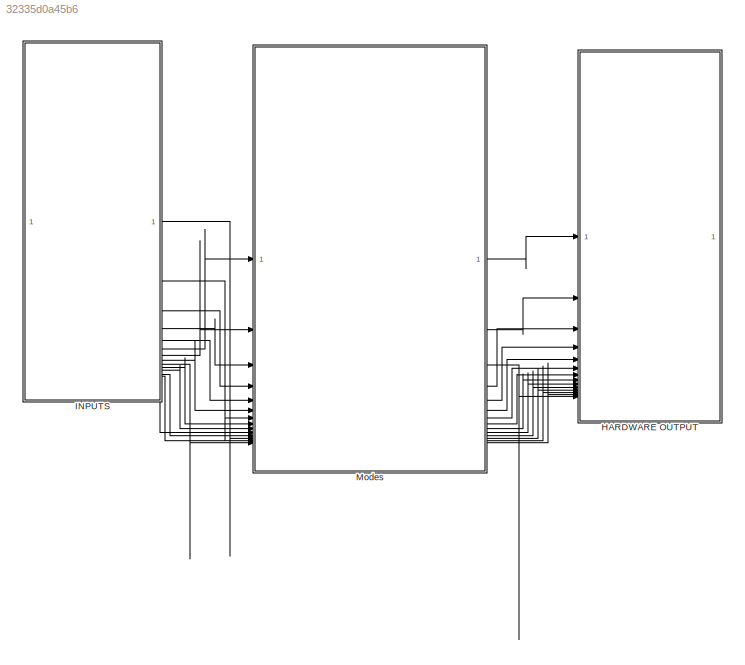
MODEL slx_32335d0a45b6
KIND model
CONFIG AbsTol = auto
CONFIG EnableMultiTasking = on
CONFIG FixedStep = 1e-3
CONFIG MaxStep = auto
CONFIG MinStep = auto
CONFIG RelTol = 1e-3
CONFIG SampleTimeConstraint = Unconstrained
CONFIG SolverName = FixedStepAuto
CONFIG StartTime = 0.0
CONFIG StopTime = 10.0
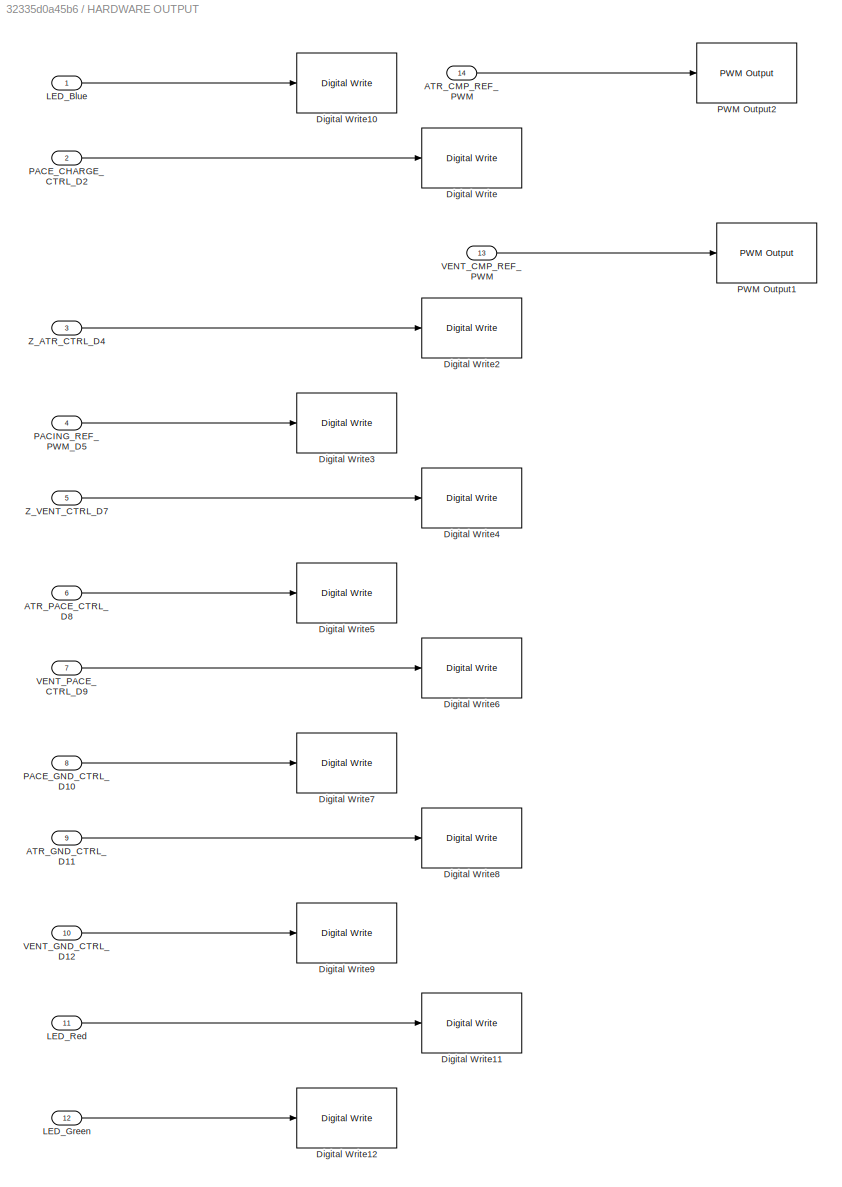
BLOCK [SubSystem] HARDWARE OUTPUT
BLOCK [Inport] HARDWARE OUTPUT/ATR_CMP_REF_PWM
  Port = 14
BLOCK [Inport] HARDWARE OUTPUT/ATR_GND_CTRL_D11
  Port = 9
BLOCK [Inport] HARDWARE OUTPUT/ATR_PACE_CTRL_D8
  Port = 6
BLOCK [Reference] HARDWARE OUTPUT/Digital Write  REF=frdmk64flib/Digital Write
  SourceBlock = frdmk64flib/Digital Write
  SourceType = freedomk64f.DigitalWrite
BLOCK [Reference] HARDWARE OUTPUT/Digital Write10  REF=frdmk64flib/Digital Write
  SourceBlock = frdmk64flib/Digital Write
  SourceType = freedomk64f.DigitalWrite
BLOCK [Reference] HARDWARE OUTPUT/Digital Write11  REF=frdmk64flib/Digital Write
  SourceBlock = frdmk64flib/Digital Write
  SourceType = freedomk64f.DigitalWrite
BLOCK [Reference] HARDWARE OUTPUT/Digital Write12  REF=frdmk64flib/Digital Write
  SourceBlock = frdmk64flib/Digital Write
  SourceType = freedomk64f.DigitalWrite
BLOCK [Reference] HARDWARE OUTPUT/Digital Write2  REF=frdmk64flib/Digital Write
  SourceBlock = frdmk64flib/Digital Write
  SourceType = freedomk64f.DigitalWrite
BLOCK [Reference] HARDWARE OUTPUT/Digital Write3  REF=frdmk64flib/Digital Write
  SourceBlock = frdmk64flib/Digital Write
  SourceType = freedomk64f.DigitalWrite
BLOCK [Reference] HARDWARE OUTPUT/Digital Write4  REF=frdmk64flib/Digital Write
  SourceBlock = frdmk64flib/Digital Write
  SourceType = freedomk64f.DigitalWrite
BLOCK [Reference] HARDWARE OUTPUT/Digital Write5  REF=frdmk64flib/Digital Write
  SourceBlock = frdmk64flib/Digital Write
  SourceType = freedomk64f.DigitalWrite
BLOCK [Reference] HARDWARE OUTPUT/Digital Write6  REF=frdmk64flib/Digital Write
  SourceBlock = frdmk64flib/Digital Write
  SourceType = freedomk64f.DigitalWrite
BLOCK [Reference] HARDWARE OUTPUT/Digital Write7  REF=frdmk64flib/Digital Write
  SourceBlock = frdmk64flib/Digital Write
  SourceType = freedomk64f.DigitalWrite
BLOCK [Reference] HARDWARE OUTPUT/Digital Write8  REF=frdmk64flib/Digital Write
  SourceBlock = frdmk64flib/Digital Write
  SourceType = freedomk64f.DigitalWrite
BLOCK [Reference] HARDWARE OUTPUT/Digital Write9  REF=frdmk64flib/Digital Write
  SourceBlock = frdmk64flib/Digital Write
  SourceType = freedomk64f.DigitalWrite
BLOCK [Inport] HARDWARE OUTPUT/LED_Blue
BLOCK [Inport] HARDWARE OUTPUT/LED_Green
  Port = 12
BLOCK [Inport] HARDWARE OUTPUT/LED_Red
  Port = 11
BLOCK [Inport] HARDWARE OUTPUT/PACE_CHARGE_CTRL_D2
  Port = 2
BLOCK [Inport] HARDWARE OUTPUT/PACE_GND_CTRL_D10
  Port = 8
BLOCK [Inport] HARDWARE OUTPUT/PACING_REF_PWM_D5
  Port = 4
BLOCK [Reference] HARDWARE OUTPUT/PWM Output1  REF=frdmk64flib/PWM Output
  SourceBlock = frdmk64flib/PWM Output
  SourceType = freedomk64f.PWMOutput
BLOCK [Reference] HARDWARE OUTPUT/PWM Output2  REF=frdmk64flib/PWM Output
  SourceBlock = frdmk64flib/PWM Output
  SourceType = freedomk64f.PWMOutput
BLOCK [Inport] HARDWARE OUTPUT/VENT_CMP_REF_PWM
  Port = 13
BLOCK [Inport] HARDWARE OUTPUT/VENT_GND_CTRL_D12
  Port = 10
BLOCK [Inport] HARDWARE OUTPUT/VENT_PACE_CTRL_D9
  Port = 7
BLOCK [Inport] HARDWARE OUTPUT/Z_ATR_CTRL_D4
  Port = 3
BLOCK [Inport] HARDWARE OUTPUT/Z_VENT_CTRL_D7
  Port = 5
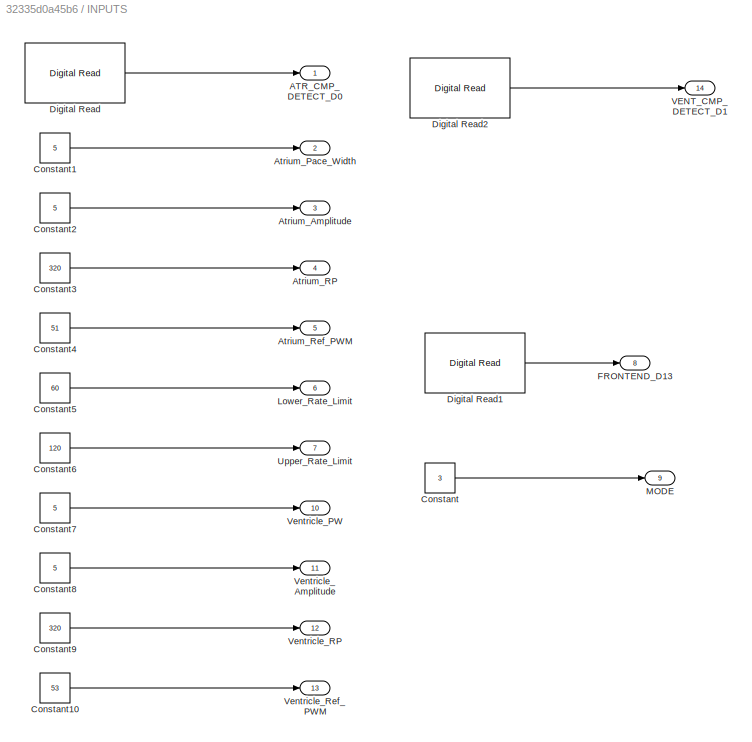
BLOCK [SubSystem] INPUTS
BLOCK [Outport] INPUTS/ MODE
  Port = 9
BLOCK [Outport] INPUTS/ATR_CMP_DETECT_D0
BLOCK [Outport] INPUTS/Atrium_Amplitude
  OutDataTypeStr = int16
  Port = 3
BLOCK [Outport] INPUTS/Atrium_Pace_Width
  OutDataTypeStr = int16
  Port = 2
BLOCK [Outport] INPUTS/Atrium_RP
  OutDataTypeStr = int16
  Port = 4
BLOCK [Outport] INPUTS/Atrium_Ref_PWM
  OutDataTypeStr = int16
  Port = 5
BLOCK [Constant] INPUTS/Constant
  Value = 3
BLOCK [Constant] INPUTS/Constant1
  OutDataTypeStr = int16
  Value = 5
BLOCK [Constant] INPUTS/Constant10
  OutDataTypeStr = int16
  Value = 53
BLOCK [Constant] INPUTS/Constant2
  OutDataTypeStr = int16
  Value = 5
BLOCK [Constant] INPUTS/Constant3
  OutDataTypeStr = int16
  Value = 320
BLOCK [Constant] INPUTS/Constant4
  OutDataTypeStr = int16
  Value = 51
BLOCK [Constant] INPUTS/Constant5
  OutDataTypeStr = int16
  Value = 60
BLOCK [Constant] INPUTS/Constant6
  OutDataTypeStr = int16
  Value = 120
BLOCK [Constant] INPUTS/Constant7
  OutDataTypeStr = int16
  Value = 5
BLOCK [Constant] INPUTS/Constant8
  OutDataTypeStr = int16
  Value = 5
BLOCK [Constant] INPUTS/Constant9
  OutDataTypeStr = int16
  Value = 320
BLOCK [Reference] INPUTS/Digital Read  REF=frdmk64flib/Digital Read
  SourceBlock = frdmk64flib/Digital Read
  SourceType = freedomk64f.DigitalRead
BLOCK [Reference] INPUTS/Digital Read1  REF=frdmk64flib/Digital Read
  SourceBlock = frdmk64flib/Digital Read
  SourceType = freedomk64f.DigitalRead
BLOCK [Reference] INPUTS/Digital Read2  REF=frdmk64flib/Digital Read
  SourceBlock = frdmk64flib/Digital Read
  SourceType = freedomk64f.DigitalRead
BLOCK [Outport] INPUTS/FRONTEND_D13
  Port = 8
BLOCK [Outport] INPUTS/Lower_Rate_Limit
  OutDataTypeStr = int16
  Port = 6
BLOCK [Outport] INPUTS/Upper_Rate_Limit
  OutDataTypeStr = int16
  Port = 7
BLOCK [Outport] INPUTS/VENT_CMP_DETECT_D1
  Port = 14
BLOCK [Outport] INPUTS/Ventricle_Amplitude
  OutDataTypeStr = int16
  Port = 11
BLOCK [Outport] INPUTS/Ventricle_PW
  OutDataTypeStr = int16
  Port = 10
BLOCK [Outport] INPUTS/Ventricle_RP
  OutDataTypeStr = int16
  Port = 12
BLOCK [Outport] INPUTS/Ventricle_Ref_PWM
  OutDataTypeStr = int16
  Port = 13
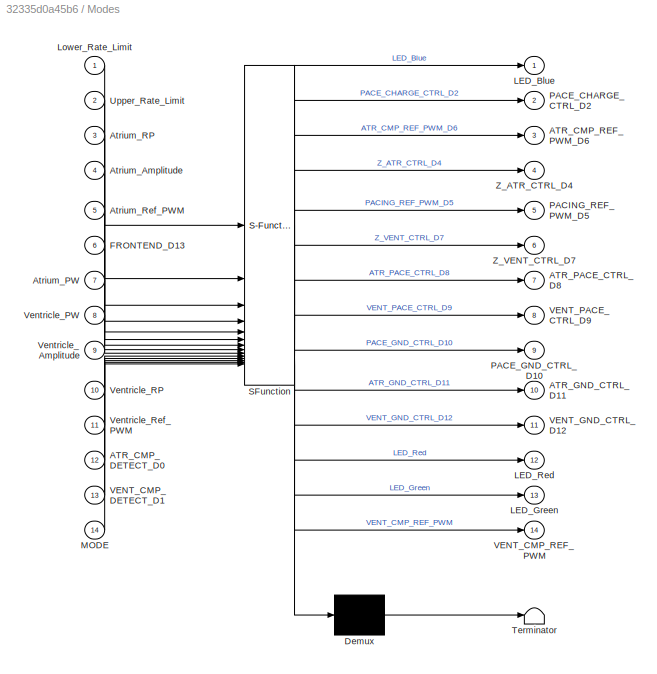
BLOCK [SubSystem] Modes
  ErrorFcn = Stateflow.Translate.translate
  PermitHierarchicalResolution = ExplicitOnly
  SFBlockType = Chart
  TreatAsAtomicUnit = on
BLOCK [Demux] Modes/ Demux 
  Outputs = 1
BLOCK [S-Function] Modes/ SFunction 
  EnableBusSupport = on
  FunctionName = sf_sfun
  PortCounts = [14 15]
  SFcnIsStateOwnerBlock = off
  SFunctionDeploymentMode = off
  Tag = Stateflow S-Function 2
BLOCK [Terminator] Modes/ Terminator 
BLOCK [Inport] Modes/ATR_CMP_DETECT_D0
  Port = 12
BLOCK [Outport] Modes/ATR_CMP_REF_PWM_D6
  Port = 3
BLOCK [Outport] Modes/ATR_GND_CTRL_D11
  Port = 10
BLOCK [Outport] Modes/ATR_PACE_CTRL_D8
  Port = 7
BLOCK [Inport] Modes/Atrium_Amplitude
  Port = 4
BLOCK [Inport] Modes/Atrium_PW
  Port = 7
BLOCK [Inport] Modes/Atrium_RP
  Port = 3
BLOCK [Inport] Modes/Atrium_Ref_PWM
  Port = 5
BLOCK [Inport] Modes/FRONTEND_D13
  Port = 6
BLOCK [Outport] Modes/LED_Blue
BLOCK [Outport] Modes/LED_Green
  Port = 13
BLOCK [Outport] Modes/LED_Red
  Port = 12
BLOCK [Inport] Modes/Lower_Rate_Limit
BLOCK [Inport] Modes/MODE
  Port = 14
BLOCK [Outport] Modes/PACE_CHARGE_CTRL_D2
  Port = 2
BLOCK [Outport] Modes/PACE_GND_CTRL_D10
  Port = 9
BLOCK [Outport] Modes/PACING_REF_PWM_D5
  Port = 5
BLOCK [Inport] Modes/Upper_Rate_Limit
  Port = 2
BLOCK [Inport] Modes/VENT_CMP_DETECT_D1
  Port = 13
BLOCK [Outport] Modes/VENT_CMP_REF_PWM
  Port = 14
BLOCK [Outport] Modes/VENT_GND_CTRL_D12
  Port = 11
BLOCK [Outport] Modes/VENT_PACE_CTRL_D9
  Port = 8
BLOCK [Inport] Modes/Ventricle_Amplitude
  Port = 9
BLOCK [Inport] Modes/Ventricle_PW
  Port = 8
BLOCK [Inport] Modes/Ventricle_RP
  Port = 10
BLOCK [Inport] Modes/Ventricle_Ref_PWM
  Port = 11
BLOCK [Outport] Modes/Z_ATR_CTRL_D4
  Port = 4
BLOCK [Outport] Modes/Z_VENT_CTRL_D7
  Port = 6
LINE HARDWARE OUTPUT/ATR_CMP_REF_PWM:1 -> HARDWARE OUTPUT/PWM Output2:1
LINE HARDWARE OUTPUT/ATR_GND_CTRL_D11:1 -> HARDWARE OUTPUT/Digital Write8:1
LINE HARDWARE OUTPUT/ATR_PACE_CTRL_D8:1 -> HARDWARE OUTPUT/Digital Write5:1
LINE HARDWARE OUTPUT/LED_Blue:1 -> HARDWARE OUTPUT/Digital Write10:1
LINE HARDWARE OUTPUT/LED_Green:1 -> HARDWARE OUTPUT/Digital Write12:1
LINE HARDWARE OUTPUT/LED_Red:1 -> HARDWARE OUTPUT/Digital Write11:1
LINE HARDWARE OUTPUT/PACE_CHARGE_CTRL_D2:1 -> HARDWARE OUTPUT/Digital Write:1
LINE HARDWARE OUTPUT/PACE_GND_CTRL_D10:1 -> HARDWARE OUTPUT/Digital Write7:1
LINE HARDWARE OUTPUT/PACING_REF_PWM_D5:1 -> HARDWARE OUTPUT/Digital Write3:1
LINE HARDWARE OUTPUT/VENT_CMP_REF_PWM:1 -> HARDWARE OUTPUT/PWM Output1:1
LINE HARDWARE OUTPUT/VENT_GND_CTRL_D12:1 -> HARDWARE OUTPUT/Digital Write9:1
LINE HARDWARE OUTPUT/VENT_PACE_CTRL_D9:1 -> HARDWARE OUTPUT/Digital Write6:1
LINE HARDWARE OUTPUT/Z_ATR_CTRL_D4:1 -> HARDWARE OUTPUT/Digital Write2:1
LINE HARDWARE OUTPUT/Z_VENT_CTRL_D7:1 -> HARDWARE OUTPUT/Digital Write4:1
LINE INPUTS/Constant10:1 -> INPUTS/Ventricle_Ref_PWM:1
LINE INPUTS/Constant1:1 -> INPUTS/Atrium_Pace_Width:1
LINE INPUTS/Constant2:1 -> INPUTS/Atrium_Amplitude:1
LINE INPUTS/Constant3:1 -> INPUTS/Atrium_RP:1
LINE INPUTS/Constant4:1 -> INPUTS/Atrium_Ref_PWM:1
LINE INPUTS/Constant5:1 -> INPUTS/Lower_Rate_Limit:1
LINE INPUTS/Constant6:1 -> INPUTS/Upper_Rate_Limit:1
LINE INPUTS/Constant7:1 -> INPUTS/Ventricle_PW:1
LINE INPUTS/Constant8:1 -> INPUTS/Ventricle_Amplitude:1
LINE INPUTS/Constant9:1 -> INPUTS/Ventricle_RP:1
LINE INPUTS/Constant:1 -> INPUTS/ MODE:1
LINE INPUTS/Digital Read1:1 -> INPUTS/FRONTEND_D13:1
LINE INPUTS/Digital Read2:1 -> INPUTS/VENT_CMP_DETECT_D1:1
LINE INPUTS/Digital Read:1 -> INPUTS/ATR_CMP_DETECT_D0:1
LINE INPUTS:1 -> Modes:12
LINE INPUTS:10 -> Modes:8
LINE INPUTS:11 -> Modes:9
LINE INPUTS:12 -> Modes:10
LINE INPUTS:13 -> Modes:11
LINE INPUTS:14 -> Modes:13
LINE INPUTS:2 -> Modes:7
LINE INPUTS:3 -> Modes:4
LINE INPUTS:4 -> Modes:3
LINE INPUTS:5 -> Modes:5
LINE INPUTS:6 -> Modes:1
LINE INPUTS:7 -> Modes:2
LINE INPUTS:8 -> Modes:6
LINE INPUTS:9 -> Modes:14
LINE Modes:1 -> HARDWARE OUTPUT:1
LINE Modes:10 -> HARDWARE OUTPUT:9
LINE Modes:11 -> HARDWARE OUTPUT:10
LINE Modes:12 -> HARDWARE OUTPUT:11
LINE Modes:13 -> HARDWARE OUTPUT:12
LINE Modes:14 -> HARDWARE OUTPUT:13
LINE Modes:2 -> HARDWARE OUTPUT:2
LINE Modes:3 -> HARDWARE OUTPUT:14
LINE Modes:4 -> HARDWARE OUTPUT:3
LINE Modes:5 -> HARDWARE OUTPUT:4
LINE Modes:6 -> HARDWARE OUTPUT:5
LINE Modes:7 -> HARDWARE OUTPUT:6
LINE Modes:8 -> HARDWARE OUTPUT:7
LINE Modes:9 -> HARDWARE OUTPUT:8
CHART Modes states=16 transitions=26
  STATE_LABEL 'VVI'
  STATE_LABEL 'Refractory\nentry:\nPACING_REF_PWM_D5 = 100*(Ventricle_Amplitude/5)\nPACE_CHARGE_CTRL_D2=1;\nPACE_GND_CTRL_D10=1;\nVENT_PACE_CTRL_D9=0;\nZ_ATR_CTRL_D4=0;\nZ_VENT_CTRL_D7=0;\nATR_PACE_CTRL_D8=0;\nATR_GND_CTRL_D11=0;\nVENT_GND_CTRL_D12=1;\nVENT_CMP_REF_PWM= Ventricle_Ref_PWM;\n%Visual Signal\nLED_Blue=0;\nPeriod=60000/(Lower_Rate_Limit)\n'
  STATE_LABEL 'Pace\nentry:\nPACING_REF_PWM_D5=0\nPACE_CHARGE_CTRL_D2=0;\nPACE_GND_CTRL_D10=1;\nATR_PACE_CTRL_D8=0;\nATR_GND_CTRL_D11=0;\nZ_ATR_CTRL_D4=0;\nZ_VENT_CTRL_D7=0;\nVENT_GND_CTRL_D12=0;\nVENT_PACE_CTRL_D9=1;\n%Visual Signal\nLED_Blue=1;\nLED_Green=0;'
  STATE_LABEL 'Sense\nentry:\nLED_Green = 1;'
  STATE_LABEL '[after(Ventricle_PW,msec)]'
  STATE_LABEL '[after(Ventricle_RP,msec)]'
  STATE_LABEL '[after(Period-Ventricle_RP-Ventricle_PW,msec)]'
  STATE_LABEL '[VENT_CMP_DETECT_D1 == 1]'
  STATE_LABEL 'Refractory\nentry:\nPACING_REF_PWM_D5 = 100*(Ventricle_Amplitude/5)\nPACE_CHARGE_CTRL_D2=1;\nPACE_GND_CTRL_D10=1;\nVENT_PACE_CTRL_D9=0;\nZ_ATR_CTRL_D4=0;\nZ_VENT_CTRL_D7=0;\nATR_PACE_CTRL_D8=0;\nATR_GND_CTRL_D11=0;\nVENT_GND_CTRL_D12=1;\nVENT_CMP_REF_PWM= Ventricle_Ref_PWM;\n%Visual Signal\nLED_Blue=0;\nPeriod=60000/(Lower_Rate_Limit)\n'
  STATE_LABEL 'Pace\nentry:\nPACING_REF_PWM_D5=0\nPACE_CHARGE_CTRL_D2=0;\nPACE_GND_CTRL_D10=1;\nATR_PACE_CTRL_D8=0;\nATR_GND_CTRL_D11=0;\nZ_ATR_CTRL_D4=0;\nZ_VENT_CTRL_D7=0;\nVENT_GND_CTRL_D12=0;\nVENT_PACE_CTRL_D9=1;\n%Visual Signal\nLED_Blue=1;\nLED_Green=0;'
  STATE_LABEL 'Sense\nentry:\nLED_Green = 1;'
  STATE_LABEL 'Mode\n%Reset everything\nentry:\nLED_Red  = 0;\nATR_PACE_CTRL_D8 = 0;\nATR_GND_CTRL_D11 = 0;\nVENT_GND_CTRL_D12 = 0;\nVENT_PACE_CTRL_D9 = 0;\nZ_ATR_CTRL_D4 = 0;\nZ_VENT_CTRL_D7 = 0;\nATR_CMP_REF_PWM_D6 = 0;\nVENT_CMP_REF_PWM= 0;\nPACE_GND_CTRL_D10 = 0;\nPACE_CHARGE_CTRL_D2 = 0;\n'
  STATE_LABEL 'VOO'
  STATE_LABEL 'ChargeDischarge\n\nentry:\n%DISCHARGE C21 (resets everything)\nPACE_GND_CTRL_D10 = 1;\nATR_GND_CTRL_D11 = 0;\nVENT_GND_CTRL_D12 = 1;\nVENT_PACE_CTRL_D9 = 0;\nATR_PACE_CTRL_D8 = 0;\nZ_ATR_CTRL_D4 = 0;\nZ_VENT_CTRL_D7 = 0;\n%CHARGE C22 (prepare for next pulse)\nPACE_CHARGE_CTRL_D2=1;\nPACING_REF_PWM_D5 = Ventricle_Amplitude;\n%VISUAL SIGNAL\nLED_Blue = 0;\n%TIMING\nSTANDBY_PERIOD = 30000/(Lower_Rate_Limit);'
  STATE_LABEL 'Pace1\n\nentry:\n%PROPER GND + TRIGGER PACE\nPACE_GND_CTRL_D10 = 1;\nATR_GND_CTRL_D11 = 0;\nVENT_GND_CTRL_D12 = 0;\nVENT_PACE_CTRL_D9 = 1;\nATR_PACE_CTRL_D8 = 0;\nZ_ATR_CTRL_D4 = 0;\nZ_VENT_CTRL_D7 = 0;\nPACE_CHARGE_CTRL_D2=0;\nPACING_REF_PWM_D5 = 0;\n%VISUAL SIGNAL\nLED_Blue = 1;'
  STATE_LABEL '[after(Ventricle_PW,msec)]'
  STATE_LABEL '[after(STANDBY_PERIOD,msec)]'
  STATE_LABEL 'ChargeDischarge\n\nentry:\n%DISCHARGE C21 (resets everything)\nPACE_GND_CTRL_D10 = 1;\nATR_GND_CTRL_D11 = 0;\nVENT_GND_CTRL_D12 = 1;\nVENT_PACE_CTRL_D9 = 0;\nATR_PACE_CTRL_D8 = 0;\nZ_ATR_CTRL_D4 = 0;\nZ_VENT_CTRL_D7 = 0;\n%CHARGE C22 (prepare for next pulse)\nPACE_CHARGE_CTRL_D2=1;\nPACING_REF_PWM_D5 = Ventricle_Amplitude;\n%VISUAL SIGNAL\nLED_Blue = 0;\n%TIMING\nSTANDBY_PERIOD = 30000/(Lower_Rate_Limit);'
  STATE_LABEL 'Pace1\n\nentry:\n%PROPER GND + TRIGGER PACE\nPACE_GND_CTRL_D10 = 1;\nATR_GND_CTRL_D11 = 0;\nVENT_GND_CTRL_D12 = 0;\nVENT_PACE_CTRL_D9 = 1;\nATR_PACE_CTRL_D8 = 0;\nZ_ATR_CTRL_D4 = 0;\nZ_VENT_CTRL_D7 = 0;\nPACE_CHARGE_CTRL_D2=0;\nPACING_REF_PWM_D5 = 0;\n%VISUAL SIGNAL\nLED_Blue = 1;'
  STATE_LABEL 'AAI'
  STATE_LABEL 'Pace\nentry:\nPACING_REF_PWM_D5=0\nPACE_CHARGE_CTRL_D2=0;\nPACE_GND_CTRL_D10=1;\nATR_PACE_CTRL_D8=1;\nATR_GND_CTRL_D11=0;\nZ_ATR_CTRL_D4=0;\nZ_VENT_CTRL_D7=0;\nVENT_GND_CTRL_D12=0;\nVENT_PACE_CTRL_D9=0;\n%Visual Signal\nLED_Blue=1;\nLED_Green = 0;'
  STATE_LABEL 'Refractory\nentry:\nPACING_REF_PWM_D5 = 100*(Atrium_Amplitude/5)\nPACE_CHARGE_CTRL_D2=1;\nPACE_GND_CTRL_D10=1;\nVENT_PACE_CTRL_D9=0;\nZ_ATR_CTRL_D4=0;\nZ_VENT_CTRL_D7=0;\nATR_PACE_CTRL_D8=0;\nATR_GND_CTRL_D11=1;\nVENT_GND_CTRL_D12=0;\nATR_CMP_REF_PWM_D6= Atrium_Ref_PWM;\n%Visual Signal\nLED_Blue=0;\nPeriod=60000/(Lower_Rate_Limit)\n'
  STATE_LABEL 'Sense\nentry:\nLED_Green = 1;\n'
  STATE_LABEL '[after(Atrium_PW,msec)]'
  STATE_LABEL '[after(Atrium_RP,msec)]'
  STATE_LABEL '[after(Period-Atrium_RP-Atrium_PW,msec)]'
  STATE_LABEL '[ATR_CMP_DETECT_D0 == 1]'
  STATE_LABEL 'Pace\nentry:\nPACING_REF_PWM_D5=0\nPACE_CHARGE_CTRL_D2=0;\nPACE_GND_CTRL_D10=1;\nATR_PACE_CTRL_D8=1;\nATR_GND_CTRL_D11=0;\nZ_ATR_CTRL_D4=0;\nZ_VENT_CTRL_D7=0;\nVENT_GND_CTRL_D12=0;\nVENT_PACE_CTRL_D9=0;\n%Visual Signal\nLED_Blue=1;\nLED_Green = 0;'
  STATE_LABEL 'Refractory\nentry:\nPACING_REF_PWM_D5 = 100*(Atrium_Amplitude/5)\nPACE_CHARGE_CTRL_D2=1;\nPACE_GND_CTRL_D10=1;\nVENT_PACE_CTRL_D9=0;\nZ_ATR_CTRL_D4=0;\nZ_VENT_CTRL_D7=0;\nATR_PACE_CTRL_D8=0;\nATR_GND_CTRL_D11=1;\nVENT_GND_CTRL_D12=0;\nATR_CMP_REF_PWM_D6= Atrium_Ref_PWM;\n%Visual Signal\nLED_Blue=0;\nPeriod=60000/(Lower_Rate_Limit)\n'
  STATE_LABEL 'Sense\nentry:\nLED_Green = 1;\n'
  STATE_LABEL 'AOO'
  STATE_LABEL 'ChargeDischarge\n\nentry:\n%DISCHARGE C21 (resets everything)\nPACE_GND_CTRL_D10 = 1;\nATR_GND_CTRL_D11 = 1;\nVENT_GND_CTRL_D12 = 0;\nVENT_PACE_CTRL_D9 = 0;\nATR_PACE_CTRL_D8 = 0;\nZ_ATR_CTRL_D4 = 0;\nZ_VENT_CTRL_D7 = 0;\n%CHARGE C22 (prepare for next pulse)\nPACE_CHARGE_CTRL_D2=1;\nPACING_REF_PWM_D5 = Atrium_Amplitude;\n%VISUAL SIGNAL\nLED_Blue = 0;\n%TIMING\nSTANDBY_PERIOD = 30000/(Lower_Rate_Limit);'
  STATE_LABEL 'Pace\n\nentry:\n%PROPER GND + TRIGGER PACE\nPACE_GND_CTRL_D10 = 1;\nATR_GND_CTRL_D11 = 0;\nVENT_GND_CTRL_D12 = 0;\nVENT_PACE_CTRL_D9 = 0;\nATR_PACE_CTRL_D8 = 1;\nZ_ATR_CTRL_D4 = 0;\nZ_VENT_CTRL_D7 = 0;\nPACE_CHARGE_CTRL_D2=0;\nPACING_REF_PWM_D5 = 0;\n%VISUAL SIGNAL\nLED_Blue = 1;'
  STATE_LABEL '[after(Atrium_PW,msec)]'
  STATE_LABEL '[after(STANDBY_PERIOD,msec)]'
  STATE_LABEL 'ChargeDischarge\n\nentry:\n%DISCHARGE C21 (resets everything)\nPACE_GND_CTRL_D10 = 1;\nATR_GND_CTRL_D11 = 1;\nVENT_GND_CTRL_D12 = 0;\nVENT_PACE_CTRL_D9 = 0;\nATR_PACE_CTRL_D8 = 0;\nZ_ATR_CTRL_D4 = 0;\nZ_VENT_CTRL_D7 = 0;\n%CHARGE C22 (prepare for next pulse)\nPACE_CHARGE_CTRL_D2=1;\nPACING_REF_PWM_D5 = Atrium_Amplitude;\n%VISUAL SIGNAL\nLED_Blue = 0;\n%TIMING\nSTANDBY_PERIOD = 30000/(Lower_Rate_Limit);'
  STATE_LABEL 'Pace\n\nentry:\n%PROPER GND + TRIGGER PACE\nPACE_GND_CTRL_D10 = 1;\nATR_GND_CTRL_D11 = 0;\nVENT_GND_CTRL_D12 = 0;\nVENT_PACE_CTRL_D9 = 0;\nATR_PACE_CTRL_D8 = 1;\nZ_ATR_CTRL_D4 = 0;\nZ_VENT_CTRL_D7 = 0;\nPACE_CHARGE_CTRL_D2=0;\nPACING_REF_PWM_D5 = 0;\n%VISUAL SIGNAL\nLED_Blue = 1;'
  STATE_LABEL 'Safety\n%LED turns red if any of the user input values are unsafe\nentry:\nLED_Red = 1;'
CHART  states=0 transitions=0
